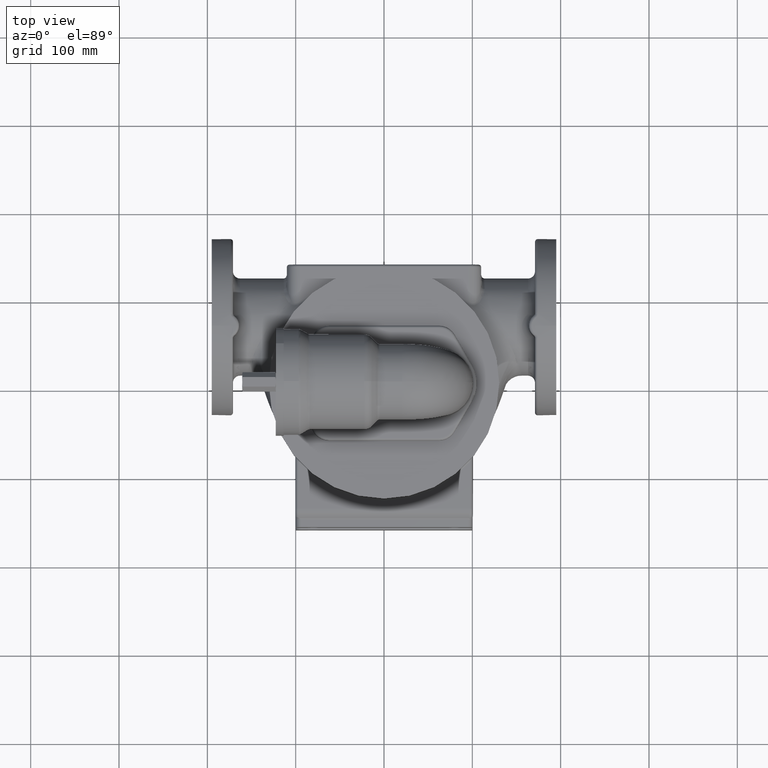
[diagram: clean part render]
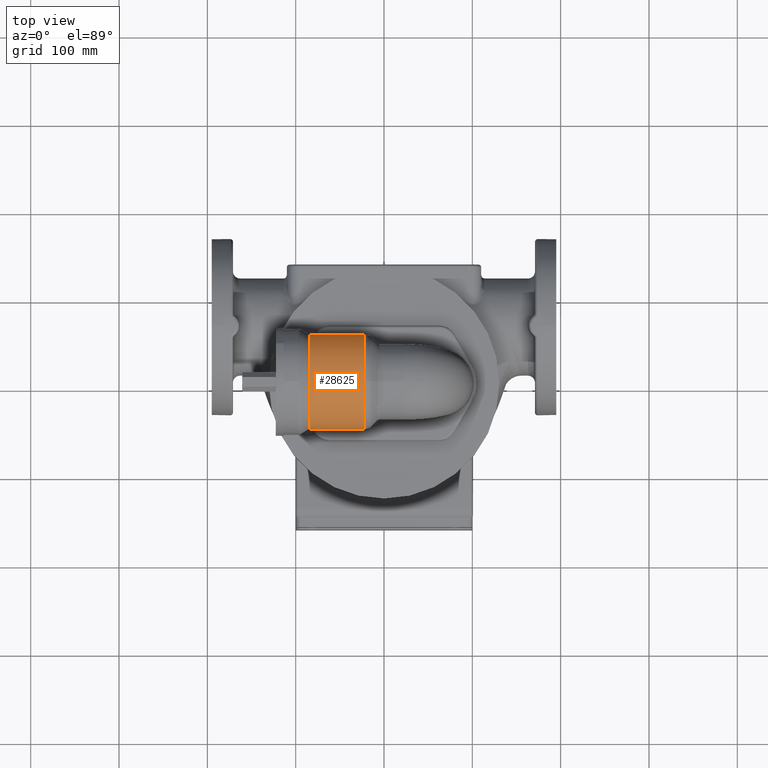
[diagram: same view with one face highlighted and labeled with its STEP entity id]
A machine part, top view. The second image highlights one B-rep face of the part: STEP entity #28625.
In plain terms, the highlighted cylindrical surface (partial cylindrical patch) has radius 54 mm, axis along (-1, 0, 0).
Its self-contained STEP definition (entity closure, byte-faithful):
#6411=CARTESIAN_POINT('',(-2.247056274848E1,-1.183711226790E1,
1.863133529900E2));
#6428=CARTESIAN_POINT('',(-2.247056274848E1,1.183711226790E1,1.863133529900E2));
#6460=CARTESIAN_POINT('',(-8.403589838486E1,-4.081350818336E-13,2.39E2));
#6461=DIRECTION('',(-1.E0,0.E0,0.E0));
#6462=DIRECTION('',(0.E0,-6.216958034636E-1,-7.832587873466E-1));
#6463=AXIS2_PLACEMENT_3D('',#6460,#6461,#6462);
#6465=CARTESIAN_POINT('',(-8.403589838486E1,3.357157338703E1,1.967040254833E2));
#6466=CARTESIAN_POINT('',(-8.373004061769E1,3.374164925663E1,1.968390197705E2));
#6467=CARTESIAN_POINT('',(-8.311699443907E1,3.407271819185E1,1.971051392192E2));
#6468=CARTESIAN_POINT('',(-8.219275988485E1,3.454327692776E1,1.974924102545E2));
#6469=CARTESIAN_POINT('',(-8.126663267407E1,3.498721641099E1,1.978660577686E2));
#6470=CARTESIAN_POINT('',(-8.034048363238E1,3.540460365481E1,1.982248911215E2));
#6471=CARTESIAN_POINT('',(-7.941628311728E1,3.579555801704E1,1.985677987216E2));
#6472=CARTESIAN_POINT('',(-7.849549450263E1,3.616051019632E1,1.988939854637E2));
#6473=CARTESIAN_POINT('',(-7.757943502986E1,3.649999278456E1,1.992028128318E2));
#6474=CARTESIAN_POINT('',(-7.666913790510E1,3.681467390249E1,1.994938390296E2));
#6475=CARTESIAN_POINT('',(-7.576539050143E1,3.710530965737E1,1.997667860401E2));
#6476=CARTESIAN_POINT('',(-7.486874573874E1,3.737271573204E1,2.000215182625E2));
#6477=CARTESIAN_POINT('',(-7.397953615661E1,3.761774085773E1,2.002580197040E2));
#6478=CARTESIAN_POINT('',(-7.309790188503E1,3.784124073436E1,2.004763684417E2));
#6479=CARTESIAN_POINT('',(-7.222381225942E1,3.804405856401E1,2.006767151017E2));
#6480=CARTESIAN_POINT('',(-7.135708890587E1,3.822700845511E1,2.008592625184E2));
#6481=CARTESIAN_POINT('',(-7.049742631648E1,3.839086242003E1,2.010242478511E2));
#6482=CARTESIAN_POINT('',(-6.964441213183E1,3.853634007581E1,2.011719267888E2));
#6483=CARTESIAN_POINT('',(-6.879754560436E1,3.866410096353E1,2.013025601556E2));
#6484=CARTESIAN_POINT('',(-6.795625321835E1,3.877473909575E1,2.014164028436E2));
#6485=CARTESIAN_POINT('',(-6.711990292090E1,3.886877965189E1,2.015136952417E2));
#6486=CARTESIAN_POINT('',(-6.628781564027E1,3.894667617761E1,2.015946556314E2));
#6487=CARTESIAN_POINT('',(-6.545927530412E1,3.900880897194E1,2.016594743524E2));
#6488=CARTESIAN_POINT('',(-6.463353747352E1,3.905548413515E1,2.017083092750E2));
#6489=CARTESIAN_POINT('',(-6.380983681993E1,3.908693309576E1,2.017412824350E2));
#6490=CARTESIAN_POINT('',(-6.298739369042E1,3.910331229444E1,2.017584775201E2));
#6491=CARTESIAN_POINT('',(-6.216542000516E1,3.910470365105E1,2.017599388805E2));
#6492=CARTESIAN_POINT('',(-6.134312447270E1,3.909111437946E1,2.017456705610E2));
#6493=CARTESIAN_POINT('',(-6.051971785421E1,3.906247666335E1,2.017156358929E2));
#6494=CARTESIAN_POINT('',(-5.969441841696E1,3.901864770686E1,2.016697581898E2));
#6495=CARTESIAN_POINT('',(-5.886645771868E1,3.895940980020E1,2.016079221668E2));
#6496=CARTESIAN_POINT('',(-5.803508703889E1,3.888447043955E1,2.015299761214E2));
#6497=CARTESIAN_POINT('',(-5.719958443376E1,3.879346319418E1,2.014357355822E2));
#6498=CARTESIAN_POINT('',(-5.635926292710E1,3.868594845104E1,2.013249874909E2));
#6499=CARTESIAN_POINT('',(-5.551348063641E1,3.856141435651E1,2.011974952273E2));
#6500=CARTESIAN_POINT('',(-5.466165227843E1,3.841927923922E1,2.010530057395E2));
#6501=CARTESIAN_POINT('',(-5.380326261950E1,3.825889516395E1,2.008912583042E2));
#6502=CARTESIAN_POINT('',(-5.293788168680E1,3.807955306579E1,2.007119952269E2));
#6503=CARTESIAN_POINT('',(-5.206518165932E1,3.788049008639E1,2.005149748892E2));
#6504=CARTESIAN_POINT('',(-5.118495912757E1,3.766089922960E1,2.002999869615E2));
#6505=CARTESIAN_POINT('',(-5.029715538810E1,3.741994174413E1,2.000668698117E2));
#6506=CARTESIAN_POINT('',(-4.940187755262E1,3.715676277715E1,1.998155301727E2));
#6507=CARTESIAN_POINT('',(-4.849942069033E1,3.687051075701E1,1.995459649267E2));
#6508=CARTESIAN_POINT('',(-4.759029194310E1,3.656036116431E1,1.992582849395E2));
#6509=CARTESIAN_POINT('',(-4.667523540665E1,3.622554483457E1,1.989527402406E2));
#6510=CARTESIAN_POINT('',(-4.575524291178E1,3.586537704545E1,1.986297423351E2));
#6511=CARTESIAN_POINT('',(-4.483156026265E1,3.547928852797E1,1.982898841608E2));
#6512=CARTESIAN_POINT('',(-4.390568349968E1,3.506685628189E1,1.979339553098E2));
#6513=CARTESIAN_POINT('',(-4.297935139833E1,3.462783380708E1,1.975629519637E2));
#6514=CARTESIAN_POINT('',(-4.205452218690E1,3.416217674816E1,1.971780781700E2));
#6515=CARTESIAN_POINT('',(-4.113332861669E1,3.367005827788E1,1.967807345783E2));
#6516=CARTESIAN_POINT('',(-4.021803062822E1,3.315187773408E1,1.963724989568E2));
#6517=CARTESIAN_POINT('',(-3.931095985341E1,3.260825966547E1,1.959550975778E2));
#6518=CARTESIAN_POINT('',(-3.841446111668E1,3.204004113080E1,1.955303676972E2));
#6519=CARTESIAN_POINT('',(-3.753082524263E1,3.144824837878E1,1.951002141332E2));
#6520=CARTESIAN_POINT('',(-3.666223407265E1,3.083406781359E1,1.946665653586E2));
#6521=CARTESIAN_POINT('',(-3.581071404125E1,3.019881251333E1,1.942313311558E2));
#6522=CARTESIAN_POINT('',(-3.497809981096E1,2.954388562110E1,1.937963635551E2));
#6523=CARTESIAN_POINT('',(-3.416600555488E1,2.887074033333E1,1.933634215018E2));
#6524=CARTESIAN_POINT('',(-3.337581442269E1,2.818084991367E1,1.929341478520E2));
#6525=CARTESIAN_POINT('',(-3.260867752577E1,2.747567891916E1,1.925100517911E2));
#6526=CARTESIAN_POINT('',(-3.186552025747E1,2.675665916823E1,1.920924983311E2));
#6527=CARTESIAN_POINT('',(-3.114705444926E1,2.602516886402E1,1.916827030250E2));
#6528=CARTESIAN_POINT('',(-3.045379479659E1,2.528251739893E1,1.912817325687E2));
#6529=CARTESIAN_POINT('',(-2.978608200695E1,2.452993945141E1,1.908905119987E2));
#6530=CARTESIAN_POINT('',(-2.914410329095E1,2.376858809721E1,1.905098319741E2));
#6531=CARTESIAN_POINT('',(-2.852791339728E1,2.299953206923E1,1.901403585953E2));
#6532=CARTESIAN_POINT('',(-2.793745428341E1,2.222375377771E1,1.897826435338E2));
#6533=CARTESIAN_POINT('',(-2.737257386360E1,2.144215131095E1,1.894371357244E2));
#6534=CARTESIAN_POINT('',(-2.683304406844E1,2.065554244461E1,1.891041931975E2));
#6535=CARTESIAN_POINT('',(-2.631857566491E1,1.986466739987E1,1.887840935433E2));
#6536=CARTESIAN_POINT('',(-2.582883173924E1,1.907019294892E1,1.884770441521E2));
#6537=CARTESIAN_POINT('',(-2.536343871747E1,1.827271491142E1,1.881831910682E2));
#6538=CARTESIAN_POINT('',(-2.492199807597E1,1.747276646405E1,1.879026291550E2));
#6539=CARTESIAN_POINT('',(-2.450409230944E1,1.667081712327E1,1.876354080370E2));
#6540=CARTESIAN_POINT('',(-2.410929529298E1,1.586728215504E1,1.873815411497E2));
#6541=CARTESIAN_POINT('',(-2.373717990902E1,1.506253040083E1,1.871410128837E2));
#6542=CARTESIAN_POINT('',(-2.338731383741E1,1.425686681299E1,1.869137779874E2));
#6543=CARTESIAN_POINT('',(-2.305927432924E1,1.345055941584E1,1.866997742395E2));
#6544=CARTESIAN_POINT('',(-2.275266618903E1,1.264387742106E1,1.864989342112E2));
#6545=CARTESIAN_POINT('',(-2.256229421447E1,1.210600784953E1,1.863737657961E2));
#6546=CARTESIAN_POINT('',(-2.247056274848E1,1.183711226790E1,1.863133529900E2));
#6548=CARTESIAN_POINT('',(-2.247056274848E1,-3.504293701335E-13,2.39E2));
#6549=DIRECTION('',(1.E0,0.E0,0.E0));
#6550=DIRECTION('',(0.E0,2.192057827390E-1,-9.756786483335E-1));
#6551=AXIS2_PLACEMENT_3D('',#6548,#6549,#6550);
#6553=CARTESIAN_POINT('',(-2.247056274848E1,-3.504293701335E-13,2.39E2));
#6554=DIRECTION('',(-1.E0,0.E0,0.E0));
#6555=DIRECTION('',(0.E0,-2.192057827390E-1,-9.756786483335E-1));
#6556=AXIS2_PLACEMENT_3D('',#6553,#6554,#6555);
#6558=CARTESIAN_POINT('',(-2.247056274848E1,-1.183711226790E1,
1.863133529900E2));
#6559=CARTESIAN_POINT('',(-2.256229405360E1,-1.210600738101E1,
1.863737656911E2));
#6560=CARTESIAN_POINT('',(-2.275266585574E1,-1.264387644943E1,
1.864989339769E2));
#6561=CARTESIAN_POINT('',(-2.305927421914E1,-1.345055918831E1,
1.866997741737E2));
#6562=CARTESIAN_POINT('',(-2.338731438677E1,-1.425686815930E1,
1.869137783470E2));
#6563=CARTESIAN_POINT('',(-2.373718104962E1,-1.506253297821E1,
1.871410136282E2));
#6564=CARTESIAN_POINT('',(-2.410929659193E1,-1.586728479365E1,
1.873815419641E2));
#6565=CARTESIAN_POINT('',(-2.450409331948E1,-1.667081909816E1,
1.876354086788E2));
#6566=CARTESIAN_POINT('',(-2.492199926192E1,-1.747276872893E1,
1.879026299291E2));
#6567=CARTESIAN_POINT('',(-2.536343968829E1,-1.827271667504E1,
1.881831917064E2));
#6568=CARTESIAN_POINT('',(-2.582883259814E1,-1.907019422506E1,
1.884770446348E2));
#6569=CARTESIAN_POINT('',(-2.631857641857E1,-1.986466858867E1,
1.887840940152E2));
#6570=CARTESIAN_POINT('',(-2.683304440046E1,-2.065554304327E1,
1.891041934500E2));
#6571=CARTESIAN_POINT('',(-2.737257357157E1,-2.144215095050E1,
1.894371355766E2));
#6572=CARTESIAN_POINT('',(-2.793745316457E1,-2.222375209178E1,
1.897826427783E2));
#6573=CARTESIAN_POINT('',(-2.852791193257E1,-2.299953006573E1,
1.901403576527E2));
#6574=CARTESIAN_POINT('',(-2.914410114355E1,-2.376858571812E1,
1.905098308141E2));
#6575=CARTESIAN_POINT('',(-2.978607842405E1,-2.452993545727E1,
1.908905099769E2));
#6576=CARTESIAN_POINT('',(-3.045378918597E1,-2.528251105660E1,
1.912817292233E2));
#6577=CARTESIAN_POINT('',(-3.114704747533E1,-2.602516120492E1,
1.916826988134E2));
#6578=CARTESIAN_POINT('',(-3.186551287625E1,-2.675665202082E1,
1.920924942538E2));
#6579=CARTESIAN_POINT('',(-3.260866836680E1,-2.747567069184E1,
1.925100469437E2));
#6580=CARTESIAN_POINT('',(-3.337580229944E1,-2.818083905865E1,
1.929341412319E2));
#6581=CARTESIAN_POINT('',(-3.416599098569E1,-2.887072739682E1,
1.933634133233E2));
#6582=CARTESIAN_POINT('',(-3.497808494965E1,-2.954387340975E1,
1.937963555653E2));
#6583=CARTESIAN_POINT('',(-3.581069855572E1,-3.019880117681E1,
1.942313235099E2));
#6584=CARTESIAN_POINT('',(-3.666221677031E1,-3.083405565914E1,
1.946665569130E2));
#6585=CARTESIAN_POINT('',(-3.753080749204E1,-3.144823585293E1,
1.951002051573E2));
#6586=CARTESIAN_POINT('',(-3.841444490977E1,-3.204002997362E1,
1.955303594614E2));
#6587=CARTESIAN_POINT('',(-3.931094459357E1,-3.260825040136E1,
1.959550905488E2));
#6588=CARTESIAN_POINT('',(-4.021801639070E1,-3.315187014892E1,
1.963724930453E2));
#6589=CARTESIAN_POINT('',(-4.113331908788E1,-3.367005320385E1,
1.967807305119E2));
#6590=CARTESIAN_POINT('',(-4.205451964263E1,-3.416217491543E1,
1.971780766542E2));
#6591=CARTESIAN_POINT('',(-4.297935306426E1,-3.462783434765E1,
1.975629524035E2));
#6592=CARTESIAN_POINT('',(-4.390568803620E1,-3.506685876764E1,
1.979339574187E2));
#6593=CARTESIAN_POINT('',(-4.483157129342E1,-3.547929370395E1,
1.982898886546E2));
#6594=CARTESIAN_POINT('',(-4.575526258531E1,-3.586538494541E1,
1.986297493407E2));
#6595=CARTESIAN_POINT('',(-4.667526140183E1,-3.622555441674E1,
1.989527489018E2));
#6596=CARTESIAN_POINT('',(-4.759032154646E1,-3.656037162560E1,
1.992582945595E2));
#6597=CARTESIAN_POINT('',(-4.849945409449E1,-3.687052194297E1,
1.995459753761E2));
#6598=CARTESIAN_POINT('',(-4.940191656635E1,-3.715677476194E1,
1.998155415338E2));
#6599=CARTESIAN_POINT('',(-5.029719981890E1,-3.741995426404E1,
2.000668818431E2));
#6600=CARTESIAN_POINT('',(-5.118500793563E1,-3.766091198841E1,
2.002999993772E2));
#6601=CARTESIAN_POINT('',(-5.206523389139E1,-3.788050272234E1,
2.005149873276E2));
#6602=CARTESIAN_POINT('',(-5.293793747892E1,-3.807956524838E1,
2.007120073447E2));
#6603=CARTESIAN_POINT('',(-5.380332265864E1,-3.825890681688E1,
2.008912700044E2));
#6604=CARTESIAN_POINT('',(-5.466171623806E1,-3.841929041970E1,
2.010530170602E2));
#6605=CARTESIAN_POINT('',(-5.551354819764E1,-3.856142505920E1,
2.011975061460E2));
#6606=CARTESIAN_POINT('',(-5.635933386446E1,-3.868595853391E1,
2.013249978460E2));
#6607=CARTESIAN_POINT('',(-5.719965870693E1,-3.879347222600E1,
2.014357449120E2));
#6608=CARTESIAN_POINT('',(-5.803516447255E1,-3.888447797898E1,
2.015299839478E2));
#6609=CARTESIAN_POINT('',(-5.886653776875E1,-3.895941592310E1,
2.016079285479E2));
#6610=CARTESIAN_POINT('',(-5.969450054191E1,-3.901865266959E1,
2.016697633780E2));
#6611=CARTESIAN_POINT('',(-6.051980166272E1,-3.906248050864E1,
2.017156399224E2));
#6612=CARTESIAN_POINT('',(-6.134320964182E1,-3.909111697020E1,
2.017456732801E2));
#6613=CARTESIAN_POINT('',(-6.216550618281E1,-3.910470451311E1,
2.017599397859E2));
#6614=CARTESIAN_POINT('',(-6.298748036063E1,-3.910331111804E1,
2.017584762845E2));
#6615=CARTESIAN_POINT('',(-6.380992349779E1,-3.908693014165E1,
2.017412793352E2));
#6616=CARTESIAN_POINT('',(-6.463362389882E1,-3.905547984643E1,
2.017083047825E2));
#6617=CARTESIAN_POINT('',(-6.545936131465E1,-3.900880348380E1,
2.016594686179E2));
#6618=CARTESIAN_POINT('',(-6.628790104665E1,-3.894666937627E1,
2.015946485479E2));
#6619=CARTESIAN_POINT('',(-6.711998735936E1,-3.886877109106E1,
2.015136863623E2));
#6620=CARTESIAN_POINT('',(-6.795633645132E1,-3.877472870088E1,
2.014163921161E2));
#6621=CARTESIAN_POINT('',(-6.879762775393E1,-3.866408899903E1,
2.013025478814E2));
#6622=CARTESIAN_POINT('',(-6.964449353548E1,-3.853632689679E1,
2.011719133604E2));
#6623=CARTESIAN_POINT('',(-7.049750705120E1,-3.839084803531E1,
2.010242333056E2));
#6624=CARTESIAN_POINT('',(-7.135716888523E1,-3.822699256613E1,
2.008592465887E2));
#6625=CARTESIAN_POINT('',(-7.222389160357E1,-3.804404093633E1,
2.006766975969E2));
#6626=CARTESIAN_POINT('',(-7.309798130846E1,-3.784122134101E1,
2.004763493859E2));
#6627=CARTESIAN_POINT('',(-7.397961607367E1,-3.761771970808E1,
2.002579991619E2));
#6628=CARTESIAN_POINT('',(-7.486882513555E1,-3.737269301979E1,
2.000214964808E2));
#6629=CARTESIAN_POINT('',(-7.576546803338E1,-3.710528557384E1,
1.997667632563E2));
#6630=CARTESIAN_POINT('',(-7.666921475008E1,-3.681464818177E1,
1.994938150559E2));
#6631=CARTESIAN_POINT('',(-7.757951056831E1,-3.649996579127E1,
1.992027880662E2));
#6632=CARTESIAN_POINT('',(-7.849557041800E1,-3.616048124462E1,
1.988939593576E2));
#6633=CARTESIAN_POINT('',(-7.941635225428E1,-3.579552969001E1,
1.985677736490E2));
#6634=CARTESIAN_POINT('',(-8.034054950404E1,-3.540457475107E1,
1.982248660119E2));
#6635=CARTESIAN_POINT('',(-8.126669709949E1,-3.498718635303E1,
1.978660322259E2));
#6636=CARTESIAN_POINT('',(-8.219280230310E1,-3.454325586984E1,
1.974923928008E2));
#6637=CARTESIAN_POINT('',(-8.311701383060E1,-3.407270780593E1,
1.971051308386E2));
#6638=CARTESIAN_POINT('',(-8.373004689028E1,-3.374164577502E1,
1.968390170087E2));
#6639=CARTESIAN_POINT('',(-8.403589838486E1,-3.357157338704E1,
1.967040254833E2));
#19233=CARTESIAN_POINT('',(-2.247056274848E1,-4.643864978924E-13,2.93E2));
#19235=VERTEX_POINT('',#19233);
#19280=VERTEX_POINT('',#6428);
#19284=VERTEX_POINT('',#6411);
#19286=VERTEX_POINT('',#6639);
#19302=CARTESIAN_POINT('',(-8.403589838486E1,3.357157338703E1,
1.967040254833E2));
#19303=VERTEX_POINT('',#19302);
#28610=CARTESIAN_POINT('',(2.7325E1,-3.037555664710E-13,2.39E2));
#28611=DIRECTION('',(-1.E0,0.E0,0.E0));
#28612=DIRECTION('',(0.E0,0.E0,-1.E0));
#28613=AXIS2_PLACEMENT_3D('',#28610,#28611,#28612);
#28614=CYLINDRICAL_SURFACE('',#28613,5.4E1);
#28616=ORIENTED_EDGE('',*,*,#28615,.T.);
#28618=ORIENTED_EDGE('',*,*,#28617,.T.);
#28619=ORIENTED_EDGE('',*,*,#28605,.T.);
#28620=ORIENTED_EDGE('',*,*,#28428,.F.);
#28622=ORIENTED_EDGE('',*,*,#28621,.T.);
#28623=EDGE_LOOP('',(#28616,#28618,#28619,#28620,#28622));
#28624=FACE_OUTER_BOUND('',#28623,.F.);
#28625=ADVANCED_FACE('',(#28624),#28614,.T.);
#6464=CIRCLE('',#6463,5.4E1);
#6547=B_SPLINE_CURVE_WITH_KNOTS('',3,(#6465,#6466,#6467,#6468,#6469,#6470,#6471,
#6472,#6473,#6474,#6475,#6476,#6477,#6478,#6479,#6480,#6481,#6482,#6483,#6484,
#6485,#6486,#6487,#6488,#6489,#6490,#6491,#6492,#6493,#6494,#6495,#6496,#6497,
#6498,#6499,#6500,#6501,#6502,#6503,#6504,#6505,#6506,#6507,#6508,#6509,#6510,
#6511,#6512,#6513,#6514,#6515,#6516,#6517,#6518,#6519,#6520,#6521,#6522,#6523,
#6524,#6525,#6526,#6527,#6528,#6529,#6530,#6531,#6532,#6533,#6534,#6535,#6536,
#6537,#6538,#6539,#6540,#6541,#6542,#6543,#6544,#6545,#6546),.UNSPECIFIED.,.F.,
.F.,(4,1,1,1,1,1,1,1,1,1,1,1,1,1,1,1,1,1,1,1,1,1,1,1,1,1,1,1,1,1,1,1,1,1,1,1,1,
1,1,1,1,1,1,1,1,1,1,1,1,1,1,1,1,1,1,1,1,1,1,1,1,1,1,1,1,1,1,1,1,1,1,1,1,1,1,1,1,
1,1,4),(0.E0,1.265822784810E-2,2.531645569620E-2,3.797468354430E-2,
5.063291139241E-2,6.329113924051E-2,7.594936708861E-2,8.860759493671E-2,
1.012658227848E-1,1.139240506329E-1,1.265822784810E-1,1.392405063291E-1,
1.518987341772E-1,1.645569620253E-1,1.772151898734E-1,1.898734177215E-1,
2.025316455696E-1,2.151898734177E-1,2.278481012658E-1,2.405063291139E-1,
2.531645569620E-1,2.658227848101E-1,2.784810126582E-1,2.911392405063E-1,
3.037974683544E-1,3.164556962025E-1,3.291139240506E-1,3.417721518987E-1,
3.544303797468E-1,3.670886075949E-1,3.797468354430E-1,3.924050632911E-1,
4.050632911392E-1,4.177215189873E-1,4.303797468354E-1,4.430379746835E-1,
4.556962025316E-1,4.683544303797E-1,4.810126582278E-1,4.936708860759E-1,
5.063291139241E-1,5.189873417722E-1,5.316455696203E-1,5.443037974684E-1,
5.569620253165E-1,5.696202531646E-1,5.822784810127E-1,5.949367088608E-1,
6.075949367089E-1,6.202531645570E-1,6.329113924051E-1,6.455696202532E-1,
6.582278481013E-1,6.708860759494E-1,6.835443037975E-1,6.962025316456E-1,
7.088607594937E-1,7.215189873418E-1,7.341772151899E-1,7.468354430380E-1,
7.594936708861E-1,7.721518987342E-1,7.848101265823E-1,7.974683544304E-1,
8.101265822785E-1,8.227848101266E-1,8.354430379747E-1,8.481012658228E-1,
8.607594936709E-1,8.734177215190E-1,8.860759493671E-1,8.987341772152E-1,
9.113924050633E-1,9.240506329114E-1,9.367088607595E-1,9.493670886076E-1,
9.620253164557E-1,9.746835443038E-1,9.873417721519E-1,1.E0),.UNSPECIFIED.);
#6552=CIRCLE('',#6551,5.4E1);
#6557=CIRCLE('',#6556,5.4E1);
#6640=B_SPLINE_CURVE_WITH_KNOTS('',3,(#6558,#6559,#6560,#6561,#6562,#6563,#6564,
#6565,#6566,#6567,#6568,#6569,#6570,#6571,#6572,#6573,#6574,#6575,#6576,#6577,
#6578,#6579,#6580,#6581,#6582,#6583,#6584,#6585,#6586,#6587,#6588,#6589,#6590,
#6591,#6592,#6593,#6594,#6595,#6596,#6597,#6598,#6599,#6600,#6601,#6602,#6603,
#6604,#6605,#6606,#6607,#6608,#6609,#6610,#6611,#6612,#6613,#6614,#6615,#6616,
#6617,#6618,#6619,#6620,#6621,#6622,#6623,#6624,#6625,#6626,#6627,#6628,#6629,
#6630,#6631,#6632,#6633,#6634,#6635,#6636,#6637,#6638,#6639),.UNSPECIFIED.,.F.,
.F.,(4,1,1,1,1,1,1,1,1,1,1,1,1,1,1,1,1,1,1,1,1,1,1,1,1,1,1,1,1,1,1,1,1,1,1,1,1,
1,1,1,1,1,1,1,1,1,1,1,1,1,1,1,1,1,1,1,1,1,1,1,1,1,1,1,1,1,1,1,1,1,1,1,1,1,1,1,1,
1,1,4),(0.E0,1.265822784810E-2,2.531645569620E-2,3.797468354430E-2,
5.063291139241E-2,6.329113924051E-2,7.594936708861E-2,8.860759493671E-2,
1.012658227848E-1,1.139240506329E-1,1.265822784810E-1,1.392405063291E-1,
1.518987341772E-1,1.645569620253E-1,1.772151898734E-1,1.898734177215E-1,
2.025316455696E-1,2.151898734177E-1,2.278481012658E-1,2.405063291139E-1,
2.531645569620E-1,2.658227848101E-1,2.784810126582E-1,2.911392405063E-1,
3.037974683544E-1,3.164556962025E-1,3.291139240506E-1,3.417721518987E-1,
3.544303797468E-1,3.670886075949E-1,3.797468354430E-1,3.924050632911E-1,
4.050632911392E-1,4.177215189873E-1,4.303797468354E-1,4.430379746835E-1,
4.556962025316E-1,4.683544303797E-1,4.810126582278E-1,4.936708860759E-1,
5.063291139241E-1,5.189873417722E-1,5.316455696203E-1,5.443037974684E-1,
5.569620253165E-1,5.696202531646E-1,5.822784810127E-1,5.949367088608E-1,
6.075949367089E-1,6.202531645570E-1,6.329113924051E-1,6.455696202532E-1,
6.582278481013E-1,6.708860759494E-1,6.835443037975E-1,6.962025316456E-1,
7.088607594937E-1,7.215189873418E-1,7.341772151899E-1,7.468354430380E-1,
7.594936708861E-1,7.721518987342E-1,7.848101265823E-1,7.974683544304E-1,
8.101265822785E-1,8.227848101266E-1,8.354430379747E-1,8.481012658228E-1,
8.607594936709E-1,8.734177215190E-1,8.860759493671E-1,8.987341772152E-1,
9.113924050633E-1,9.240506329114E-1,9.367088607595E-1,9.493670886076E-1,
9.620253164557E-1,9.746835443038E-1,9.873417721519E-1,1.E0),.UNSPECIFIED.);
#28428=EDGE_CURVE('',#19284,#19235,#6557,.T.);
#28605=EDGE_CURVE('',#19280,#19235,#6552,.T.);
#28615=EDGE_CURVE('',#19286,#19303,#6464,.T.);
#28617=EDGE_CURVE('',#19303,#19280,#6547,.T.);
#28621=EDGE_CURVE('',#19284,#19286,#6640,.T.);